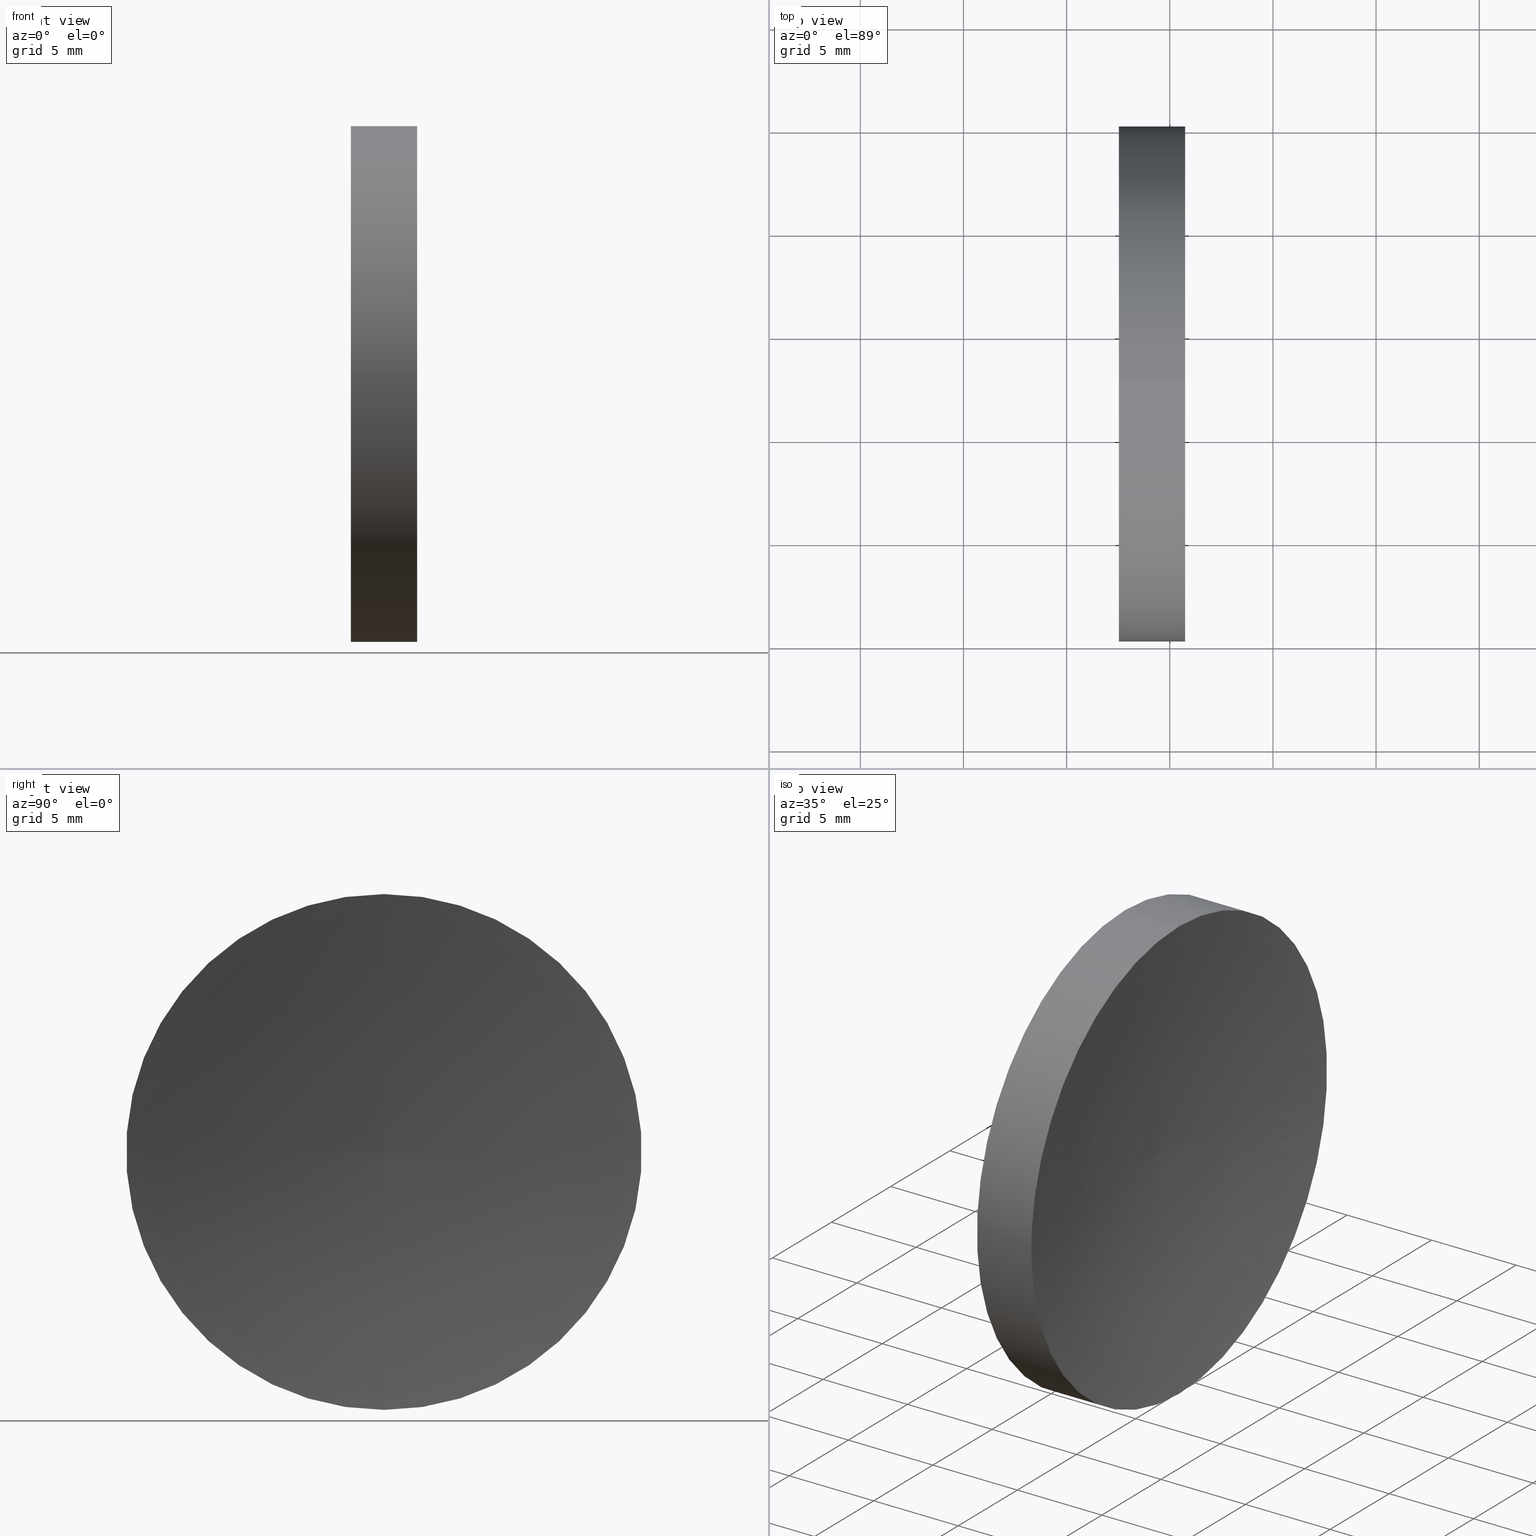
[diagram: canonical four-view strip — front | top / right | iso, engineering-drawing reading convention]
A machine part, canonical four-view strip (front | top / right | iso — engineering-drawing reading convention). The complete STEP part file that produces these views, byte-faithful:
ISO-10303-21;
HEADER;
FILE_DESCRIPTION (( 'STEP AP214' ),
    '1' );
FILE_NAME ('120036.STEP',
    '2019-06-17T05:33:28',
    ( '' ),
    ( '' ),
    'SwSTEP 2.0',
    'SolidWorks 2016',
    '' );
FILE_SCHEMA (( 'AUTOMOTIVE_DESIGN' ));
ENDSEC;

DATA;
#1 = DIRECTION ( 'NONE',  ( -1.000000000000000000, -0.0000000000000000000, -0.0000000000000000000 ) ) ;
#2 = DIRECTION ( 'NONE',  ( -1.000000000000000000, -0.0000000000000000000, -0.0000000000000000000 ) ) ;
#3 = CIRCLE ( 'NONE', #159, 12.49999999999999600 ) ;
#4 = AXIS2_PLACEMENT_3D ( 'NONE', #35, #98, #83 ) ;
#5 = VECTOR ( 'NONE', #2, 1000.000000000000000 ) ;
#6 = CARTESIAN_POINT ( 'NONE',  ( 57.53233705252611700, 32.61076812922678400, 12.49999999999999600 ) ) ;
#7 = FILL_AREA_STYLE ('',( #73 ) ) ;
#8 = AXIS2_PLACEMENT_3D ( 'NONE', #47, #74, #85 ) ;
#9 = ORIENTED_EDGE ( 'NONE', *, *, #144, .F. ) ;
#10 = PRESENTATION_LAYER_ASSIGNMENT (  '', '', ( #48 ) ) ;
#11 = MECHANICAL_DESIGN_GEOMETRIC_PRESENTATION_REPRESENTATION (  '', ( #48 ), #21 ) ;
#12 = STYLED_ITEM ( 'NONE', ( #109 ), #80 ) ;
#13 = AXIS2_PLACEMENT_3D ( 'NONE', #113, #141, #89 ) ;
#14 = PRESENTATION_LAYER_ASSIGNMENT (  '', '', ( #12 ) ) ;
#15 = UNCERTAINTY_MEASURE_WITH_UNIT (LENGTH_MEASURE( 1.000000000000000100E-005 ), #106, 'distance_accuracy_value', 'NONE');
#16 = DIRECTION ( 'NONE',  ( 0.0000000000000000000, 0.0000000000000000000, 1.000000000000000000 ) ) ;
#17 = DIRECTION ( 'NONE',  ( 0.0000000000000000000, 0.0000000000000000000, -1.000000000000000000 ) ) ;
#18 = SURFACE_STYLE_USAGE ( .BOTH. , #101 ) ;
#19 = PRODUCT_DEFINITION_SHAPE ( 'NONE', 'NONE',  #88 ) ;
#20 = DIRECTION ( 'NONE',  ( 0.0000000000000000000, -1.074964198901197400E-016, 1.000000000000000000 ) ) ;
#21 =( GEOMETRIC_REPRESENTATION_CONTEXT ( 3 ) GLOBAL_UNCERTAINTY_ASSIGNED_CONTEXT ( ( #15 ) ) GLOBAL_UNIT_ASSIGNED_CONTEXT ( ( #106, #76, #104 ) ) REPRESENTATION_CONTEXT ( 'NONE', 'WORKASPACE' ) );
#22 = EDGE_LOOP ( 'NONE', ( #9, #52, #142 ) ) ;
#23 = EDGE_CURVE ( 'NONE', #34, #131, #112, .T. ) ;
#24 = AXIS2_PLACEMENT_3D ( 'NONE', #71, #32, #17 ) ;
#25 = FACE_OUTER_BOUND ( 'NONE', #134, .T. ) ;
#26 = EDGE_LOOP ( 'NONE', ( #68, #58 ) ) ;
#27 = CARTESIAN_POINT ( 'NONE',  ( 60.74492795786347400, 32.61076812922678400, 12.49999999999999600 ) ) ;
#28 = DIRECTION ( 'NONE',  ( 0.0000000000000000000, 0.0000000000000000000, 1.000000000000000000 ) ) ;
#29 = VERTEX_POINT ( 'NONE', #56 ) ;
#30 = CARTESIAN_POINT ( 'NONE',  ( 56.10091507999716500, 32.61076812922678400, 12.49999999999999600 ) ) ;
#31 = FILL_AREA_STYLE_COLOUR ( '', #139 ) ;
#32 = DIRECTION ( 'NONE',  ( 1.000000000000000000, 0.0000000000000000000, 0.0000000000000000000 ) ) ;
#33 = EDGE_CURVE ( 'NONE', #29, #131, #3, .T. ) ;
#34 = VERTEX_POINT ( 'NONE', #27 ) ;
#35 = CARTESIAN_POINT ( 'NONE',  ( 124.0823199437282200, 32.61076812922678400, 0.0000000000000000000 ) ) ;
#36 = CARTESIAN_POINT ( 'NONE',  ( 124.0823199437282200, 32.61076812922678400, 0.0000000000000000000 ) ) ;
#37 = ADVANCED_FACE ( 'NONE', ( #25 ), #78, .T. ) ;
#38 = ORIENTED_EDGE ( 'NONE', *, *, #94, .F. ) ;
#39 = CIRCLE ( 'NONE', #108, 64.54999999999999700 ) ;
#40 = AXIS2_PLACEMENT_3D ( 'NONE', #36, #128, #115 ) ;
#41 = SURFACE_STYLE_FILL_AREA ( #124 ) ;
#42 =( GEOMETRIC_REPRESENTATION_CONTEXT ( 3 ) GLOBAL_UNCERTAINTY_ASSIGNED_CONTEXT ( ( #92 ) ) GLOBAL_UNIT_ASSIGNED_CONTEXT ( ( #148, #61, #138 ) ) REPRESENTATION_CONTEXT ( 'NONE', 'WORKASPACE' ) );
#43 = EDGE_LOOP ( 'NONE', ( #99, #64, #122, #120 ) ) ;
#44 = DIRECTION ( 'NONE',  ( 0.0000000000000000000, 0.0000000000000000000, 1.000000000000000000 ) ) ;
#45 = EDGE_CURVE ( 'NONE', #93, #29, #129, .T. ) ;
#46 = CARTESIAN_POINT ( 'NONE',  ( 57.53233705252611700, 32.61076812922678400, 0.0000000000000000000 ) ) ;
#47 = CARTESIAN_POINT ( 'NONE',  ( 60.74492795786346700, 32.61076812922678400, 0.0000000000000000000 ) ) ;
#48 = STYLED_ITEM ( 'NONE', ( #152 ), #157 ) ;
#49 = APPLICATION_CONTEXT ( 'automotive_design' ) ;
#50 = ADVANCED_FACE ( 'NONE', ( #140 ), #160, .T. ) ;
#51 = UNCERTAINTY_MEASURE_WITH_UNIT (LENGTH_MEASURE( 1.000000000000000100E-005 ), #72, 'distance_accuracy_value', 'NONE');
#52 = ORIENTED_EDGE ( 'NONE', *, *, #133, .F. ) ;
#53 = PRODUCT_CONTEXT ( 'NONE', #60, 'mechanical' ) ;
#54 = MECHANICAL_DESIGN_GEOMETRIC_PRESENTATION_REPRESENTATION (  '', ( #12 ), #42 ) ;
#55 = TOROIDAL_SURFACE ( 'NONE', #40, 0.04699729266405966400, 64.54999999999999700 ) ;
#56 = CARTESIAN_POINT ( 'NONE',  ( 57.53233705252611700, 32.61076812922678400, -12.49999999999999600 ) ) ;
#57 = CARTESIAN_POINT ( 'NONE',  ( 56.10091507999716500, 32.61076812922678400, -12.49999999999999600 ) ) ;
#58 = ORIENTED_EDGE ( 'NONE', *, *, #33, .T. ) ;
#59 = CARTESIAN_POINT ( 'NONE',  ( 124.0823199437282200, 32.61076812922678400, 0.04699729266405966400 ) ) ;
#60 = APPLICATION_CONTEXT ( 'automotive_design' ) ;
#61 =( NAMED_UNIT ( * ) PLANE_ANGLE_UNIT ( ) SI_UNIT ( $, .RADIAN. ) );
#62 =( NAMED_UNIT ( * ) SI_UNIT ( $, .STERADIAN. ) SOLID_ANGLE_UNIT ( ) );
#63 = CIRCLE ( 'NONE', #110, 12.49999999999999600 ) ;
#64 = ORIENTED_EDGE ( 'NONE', *, *, #45, .T. ) ;
#65 = AXIS2_PLACEMENT_3D ( 'NONE', #59, #127, #164 ) ;
#66 = AXIS2_PLACEMENT_3D ( 'NONE', #46, #137, #16 ) ;
#67 = SHAPE_DEFINITION_REPRESENTATION ( #19, #157 ) ;
#68 = ORIENTED_EDGE ( 'NONE', *, *, #155, .T. ) ;
#69 = AXIS2_PLACEMENT_3D ( 'NONE', #111, #1, #158 ) ;
#70 = CARTESIAN_POINT ( 'NONE',  ( 57.53233705252611700, 32.61076812922678400, 0.0000000000000000000 ) ) ;
#71 = CARTESIAN_POINT ( 'NONE',  ( 57.53233705252611700, 32.61076812922678400, 0.0000000000000000000 ) ) ;
#72 =( LENGTH_UNIT ( ) NAMED_UNIT ( * ) SI_UNIT ( .MILLI., .METRE. ) );
#73 = FILL_AREA_STYLE_COLOUR ( '', #126 ) ;
#74 = DIRECTION ( 'NONE',  ( -1.000000000000000000, -0.0000000000000000000, -0.0000000000000000000 ) ) ;
#75 = FACE_OUTER_BOUND ( 'NONE', #162, .T. ) ;
#76 =( NAMED_UNIT ( * ) PLANE_ANGLE_UNIT ( ) SI_UNIT ( $, .RADIAN. ) );
#77 = ADVANCED_FACE ( 'NONE', ( #79 ), #125, .F. ) ;
#78 = CYLINDRICAL_SURFACE ( 'NONE', #166, 12.49999999999999600 ) ;
#79 = FACE_OUTER_BOUND ( 'NONE', #26, .T. ) ;
#80 = MANIFOLD_SOLID_BREP ( '��ת1', #97 ) ;
#81 = FACE_OUTER_BOUND ( 'NONE', #22, .T. ) ;
#82 = ORIENTED_EDGE ( 'NONE', *, *, #94, .T. ) ;
#83 = DIRECTION ( 'NONE',  ( 0.0000000000000000000, 0.0000000000000000000, 1.000000000000000000 ) ) ;
#84 = DIRECTION ( 'NONE',  ( 0.0000000000000000000, 0.0000000000000000000, 1.000000000000000000 ) ) ;
#85 = DIRECTION ( 'NONE',  ( 0.0000000000000000000, 0.0000000000000000000, 1.000000000000000000 ) ) ;
#86 = SURFACE_STYLE_USAGE ( .BOTH. , #102 ) ;
#87 = CARTESIAN_POINT ( 'NONE',  ( 124.0823199437282200, 32.61076812922678400, -0.04699729266405966400 ) ) ;
#88 = PRODUCT_DEFINITION ( 'δ֪', '', #136, #116 ) ;
#89 = DIRECTION ( 'NONE',  ( 1.000000000000000000, 0.0000000000000000000, 0.0000000000000000000 ) ) ;
#90 = SURFACE_STYLE_FILL_AREA ( #7 ) ;
#91 = APPLICATION_PROTOCOL_DEFINITION ( 'draft international standard', 'automotive_design', 1998, #49 ) ;
#92 = UNCERTAINTY_MEASURE_WITH_UNIT (LENGTH_MEASURE( 1.000000000000000100E-005 ), #148, 'distance_accuracy_value', 'NONE');
#93 = VERTEX_POINT ( 'NONE', #163 ) ;
#94 = EDGE_CURVE ( 'NONE', #93, #34, #63, .T. ) ;
#95 = CIRCLE ( 'NONE', #66, 12.49999999999999600 ) ;
#96 = DIRECTION ( 'NONE',  ( -1.000000000000000000, -0.0000000000000000000, -0.0000000000000000000 ) ) ;
#97 = CLOSED_SHELL ( 'NONE', ( #50, #105, #153, #37, #77 ) ) ;
#98 = DIRECTION ( 'NONE',  ( -1.000000000000000000, -0.0000000000000000000, -0.0000000000000000000 ) ) ;
#99 = ORIENTED_EDGE ( 'NONE', *, *, #133, .T. ) ;
#100 = DIRECTION ( 'NONE',  ( -0.0000000000000000000, 1.000000000000000000, 1.224646799147353200E-016 ) ) ;
#101 = SURFACE_SIDE_STYLE ('',( #90 ) ) ;
#102 = SURFACE_SIDE_STYLE ('',( #41 ) ) ;
#103 = ORIENTED_EDGE ( 'NONE', *, *, #23, .T. ) ;
#104 =( NAMED_UNIT ( * ) SI_UNIT ( $, .STERADIAN. ) SOLID_ANGLE_UNIT ( ) );
#105 = ADVANCED_FACE ( 'NONE', ( #75 ), #55, .F. ) ;
#106 =( LENGTH_UNIT ( ) NAMED_UNIT ( * ) SI_UNIT ( .MILLI., .METRE. ) );
#107 = EDGE_CURVE ( 'NONE', #34, #147, #117, .T. ) ;
#108 = AXIS2_PLACEMENT_3D ( 'NONE', #87, #100, #20 ) ;
#109 = PRESENTATION_STYLE_ASSIGNMENT (( #86 ) ) ;
#110 = AXIS2_PLACEMENT_3D ( 'NONE', #150, #135, #84 ) ;
#111 = CARTESIAN_POINT ( 'NONE',  ( 56.10091507999716500, 32.61076812922678400, 0.0000000000000000000 ) ) ;
#112 = LINE ( 'NONE', #30, #118 ) ;
#113 = CARTESIAN_POINT ( 'NONE',  ( 0.0000000000000000000, 0.0000000000000000000, 0.0000000000000000000 ) ) ;
#114 = ORIENTED_EDGE ( 'NONE', *, *, #107, .F. ) ;
#115 = DIRECTION ( 'NONE',  ( 0.0000000000000000000, 0.0000000000000000000, 1.000000000000000000 ) ) ;
#116 = PRODUCT_DEFINITION_CONTEXT ( 'detailed design', #49, 'design' ) ;
#117 = CIRCLE ( 'NONE', #65, 64.54999999999999700 ) ;
#118 = VECTOR ( 'NONE', #96, 1000.000000000000000 ) ;
#119 = PRODUCT ( '120036', '120036', '', ( #53 ) ) ;
#120 = ORIENTED_EDGE ( 'NONE', *, *, #23, .F. ) ;
#121 = TOROIDAL_SURFACE ( 'NONE', #4, 0.04699729266405966400, 64.54999999999999700 ) ;
#122 = ORIENTED_EDGE ( 'NONE', *, *, #155, .F. ) ;
#123 = DIRECTION ( 'NONE',  ( -1.000000000000000000, -0.0000000000000000000, -0.0000000000000000000 ) ) ;
#124 = FILL_AREA_STYLE ('',( #31 ) ) ;
#125 = PLANE ( 'NONE',  #24 ) ;
#126 = COLOUR_RGB ( '',1.000000000000000000, 1.000000000000000000, 1.000000000000000000 ) ;
#127 = DIRECTION ( 'NONE',  ( 0.0000000000000000000, -1.000000000000000000, 0.0000000000000000000 ) ) ;
#128 = DIRECTION ( 'NONE',  ( -1.000000000000000000, -0.0000000000000000000, -0.0000000000000000000 ) ) ;
#129 = LINE ( 'NONE', #57, #5 ) ;
#130 =( GEOMETRIC_REPRESENTATION_CONTEXT ( 3 ) GLOBAL_UNCERTAINTY_ASSIGNED_CONTEXT ( ( #51 ) ) GLOBAL_UNIT_ASSIGNED_CONTEXT ( ( #72, #161, #62 ) ) REPRESENTATION_CONTEXT ( 'NONE', 'WORKASPACE' ) );
#131 = VERTEX_POINT ( 'NONE', #6 ) ;
#132 = DIRECTION ( 'NONE',  ( -1.000000000000000000, -0.0000000000000000000, -0.0000000000000000000 ) ) ;
#133 = EDGE_CURVE ( 'NONE', #34, #93, #146, .T. ) ;
#134 = EDGE_LOOP ( 'NONE', ( #156, #82, #103, #165 ) ) ;
#135 = DIRECTION ( 'NONE',  ( -1.000000000000000000, -0.0000000000000000000, -0.0000000000000000000 ) ) ;
#136 = PRODUCT_DEFINITION_FORMATION_WITH_SPECIFIED_SOURCE ( '�κ�', '', #119, .NOT_KNOWN. ) ;
#137 = DIRECTION ( 'NONE',  ( -1.000000000000000000, -0.0000000000000000000, -0.0000000000000000000 ) ) ;
#138 =( NAMED_UNIT ( * ) SI_UNIT ( $, .STERADIAN. ) SOLID_ANGLE_UNIT ( ) );
#139 = COLOUR_RGB ( '',1.000000000000000000, 1.000000000000000000, 1.000000000000000000 ) ;
#140 = FACE_OUTER_BOUND ( 'NONE', #43, .T. ) ;
#141 = DIRECTION ( 'NONE',  ( 0.0000000000000000000, 0.0000000000000000000, 1.000000000000000000 ) ) ;
#142 = ORIENTED_EDGE ( 'NONE', *, *, #107, .T. ) ;
#143 = ORIENTED_EDGE ( 'NONE', *, *, #144, .T. ) ;
#144 = EDGE_CURVE ( 'NONE', #93, #147, #39, .T. ) ;
#145 = CARTESIAN_POINT ( 'NONE',  ( 56.10091507999716500, 32.61076812922678400, 0.0000000000000000000 ) ) ;
#146 = CIRCLE ( 'NONE', #8, 12.49999999999999600 ) ;
#147 = VERTEX_POINT ( 'NONE', #151 ) ;
#148 =( LENGTH_UNIT ( ) NAMED_UNIT ( * ) SI_UNIT ( .MILLI., .METRE. ) );
#149 = APPLICATION_PROTOCOL_DEFINITION ( 'draft international standard', 'automotive_design', 1998, #60 ) ;
#150 = CARTESIAN_POINT ( 'NONE',  ( 60.74492795786346700, 32.61076812922678400, 0.0000000000000000000 ) ) ;
#151 = CARTESIAN_POINT ( 'NONE',  ( 59.53233705252613800, 32.61076812922678400, 0.0000000000000000000 ) ) ;
#152 = PRESENTATION_STYLE_ASSIGNMENT (( #18 ) ) ;
#153 = ADVANCED_FACE ( 'NONE', ( #81 ), #121, .F. ) ;
#154 = PRODUCT_RELATED_PRODUCT_CATEGORY ( 'part', '', ( #119 ) ) ;
#155 = EDGE_CURVE ( 'NONE', #131, #29, #95, .T. ) ;
#156 = ORIENTED_EDGE ( 'NONE', *, *, #45, .F. ) ;
#157 = ADVANCED_BREP_SHAPE_REPRESENTATION ( '120036', ( #80, #13 ), #130 ) ;
#158 = DIRECTION ( 'NONE',  ( 0.0000000000000000000, 0.0000000000000000000, 1.000000000000000000 ) ) ;
#159 = AXIS2_PLACEMENT_3D ( 'NONE', #70, #132, #44 ) ;
#160 = CYLINDRICAL_SURFACE ( 'NONE', #69, 12.49999999999999600 ) ;
#161 =( NAMED_UNIT ( * ) PLANE_ANGLE_UNIT ( ) SI_UNIT ( $, .RADIAN. ) );
#162 = EDGE_LOOP ( 'NONE', ( #38, #143, #114 ) ) ;
#163 = CARTESIAN_POINT ( 'NONE',  ( 60.74492795786347400, 32.61076812922678400, -12.49999999999999600 ) ) ;
#164 = DIRECTION ( 'NONE',  ( 0.0000000000000000000, 0.0000000000000000000, -1.000000000000000000 ) ) ;
#165 = ORIENTED_EDGE ( 'NONE', *, *, #33, .F. ) ;
#166 = AXIS2_PLACEMENT_3D ( 'NONE', #145, #123, #28 ) ;
ENDSEC;
END-ISO-10303-21;
